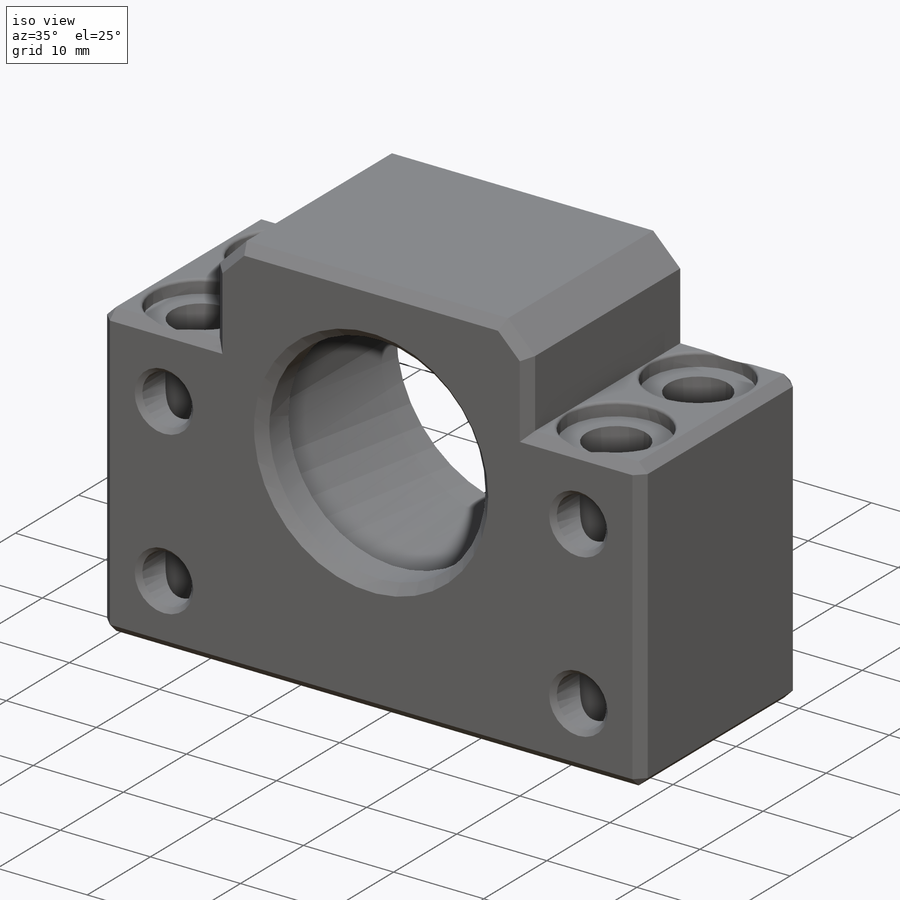
[diagram: iso view]
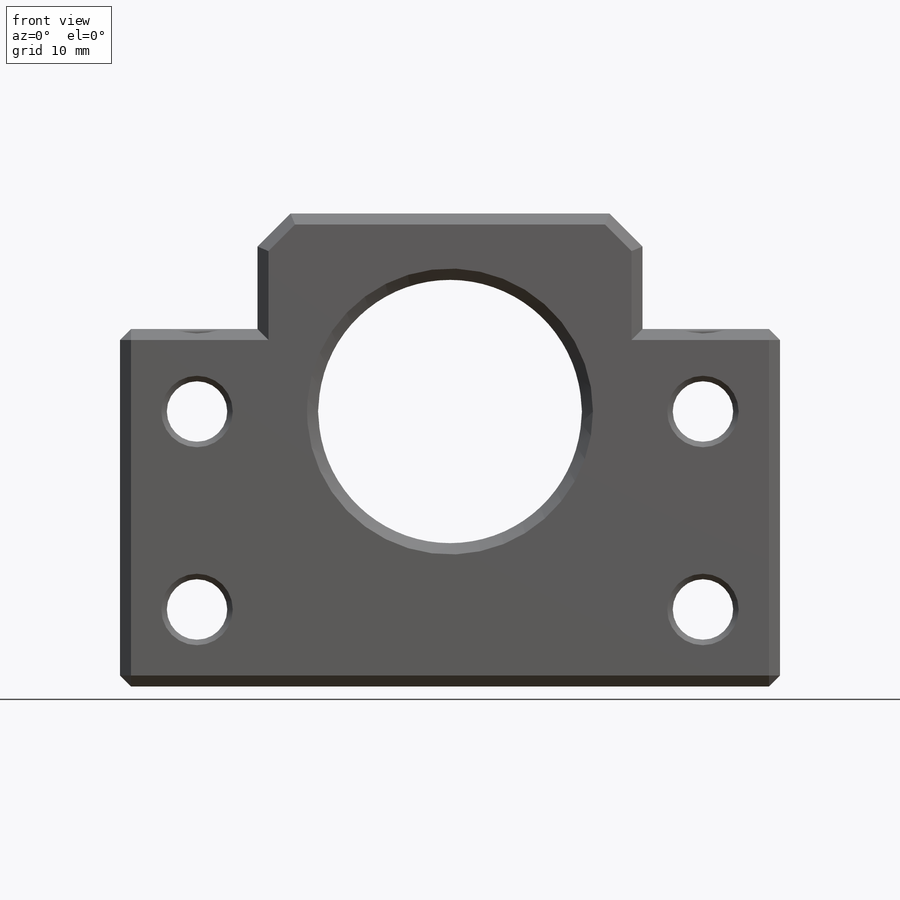
[diagram: front view]
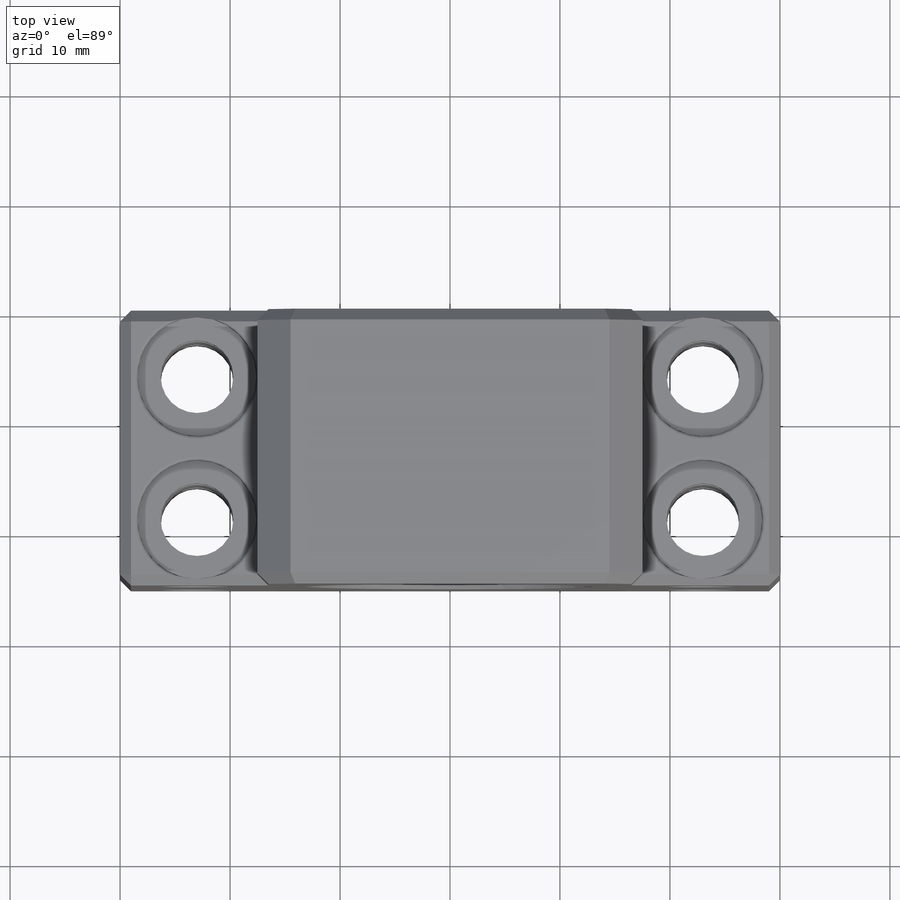
[diagram: top view]
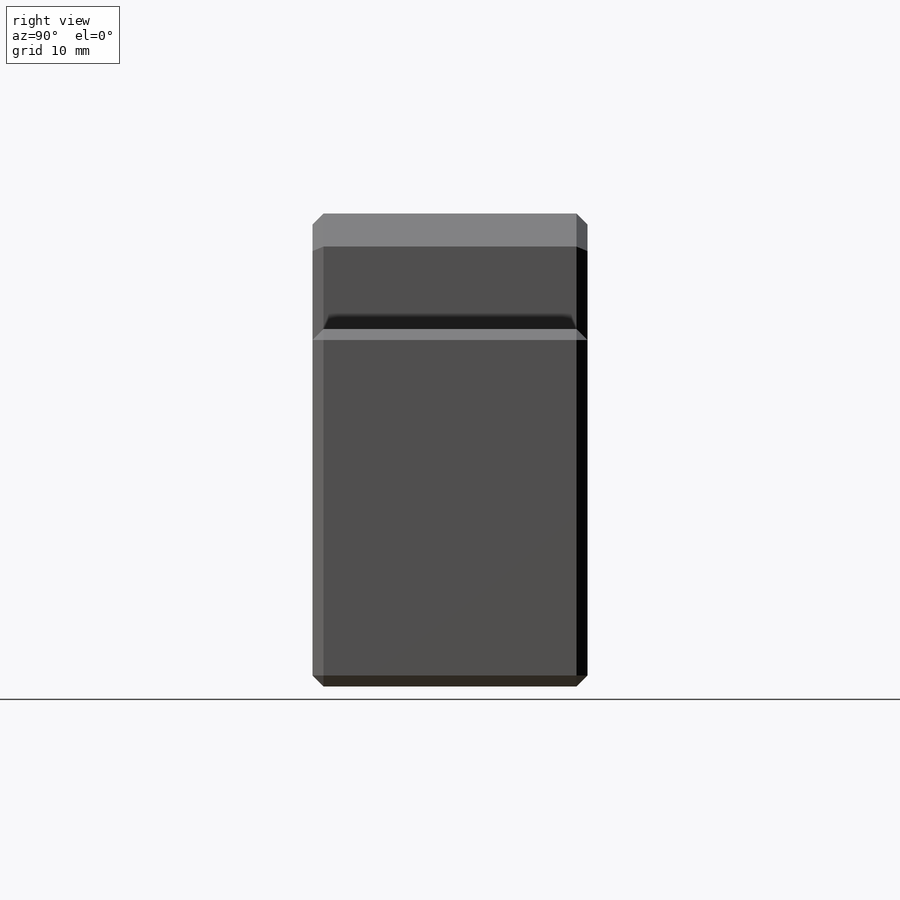
[diagram: right view]
SOLIDWORKS PART (.sldprt)
format: sldprt  version: not decoded by parser v0  size: 562,176 bytes
history: native  units: mm
features: sketch x6, chamfer x5, cut_extrude x5, material x1, extrude x1, fillet x1 (+11 scaffold rows collapsed)
feature tree (30):
  scaffold x11  (default folders/planes/origin — collapsed)
  material  "1060 Alloy"
  sketch  "Sketch1"  dims[D5=24.0mm D1=30.0mm D2=43.0mm D3=17.5mm D4=32.5mm D6=25.0mm]
  extrude  "Boss-Extrude1"  Depth=25mm
  chamfer  "Chamfer2"  Distance=3mm Angle=45deg
  chamfer  "Chamfer1"  Distance=1mm Angle=45deg
  sketch  "Sketch2"  dims[D1=28.0mm D2=25.0mm]
  cut_extrude  "Cut-Extrude1"  Depth=20mm
  chamfer  "Chamfer3"  Distance=1mm Angle=45deg
  sketch  "Sketch3"  dims[D2=3.0mm D1=25.0mm D3=23.7mm]
  cut_extrude  "Cut-Extrude2"  Depth=12mm
  chamfer  "Chamfer4"  Distance=0.1mm Angle=45deg
  sketch  "Sketch4"  dims[D1=5.5mm D2=46.0mm D3=18.0mm D4=16.0mm]
  cut_extrude  "Cut-Extrude3"  [1 undecoded]
  sketch  "Sketch5"  dims[D1=6.6mm D2=46.0mm D3=13.0mm]
  cut_extrude  "Cut-Extrude4"  [1 undecoded]
  chamfer  "Chamfer5"  Distance=0.5mm Angle=45deg
  sketch  "Sketch6"  dims[D3=10.8mm D1=46.0mm D2=13.0mm]
  cut_extrude  "Cut-Extrude5"  Depth=1.5mm
  fillet  "Fillet1"  Radius=0.3mm
decode coverage: 16 of 18 modeling features carry decoded parameters
note: 2 parameter values undecoded
note: suppression state not decoded; provenance and decode notes live in map.json
